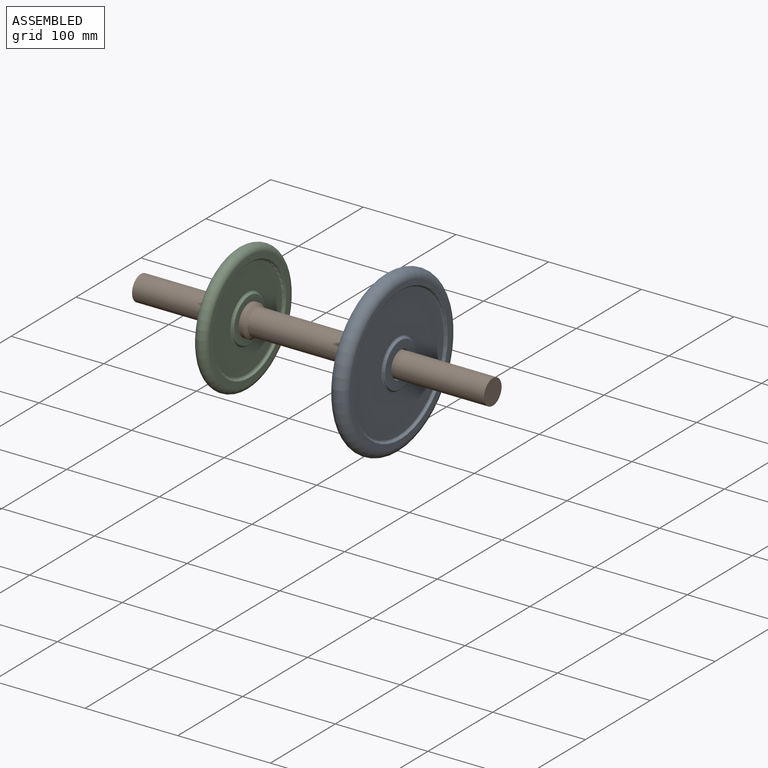
[diagram: assembled view]
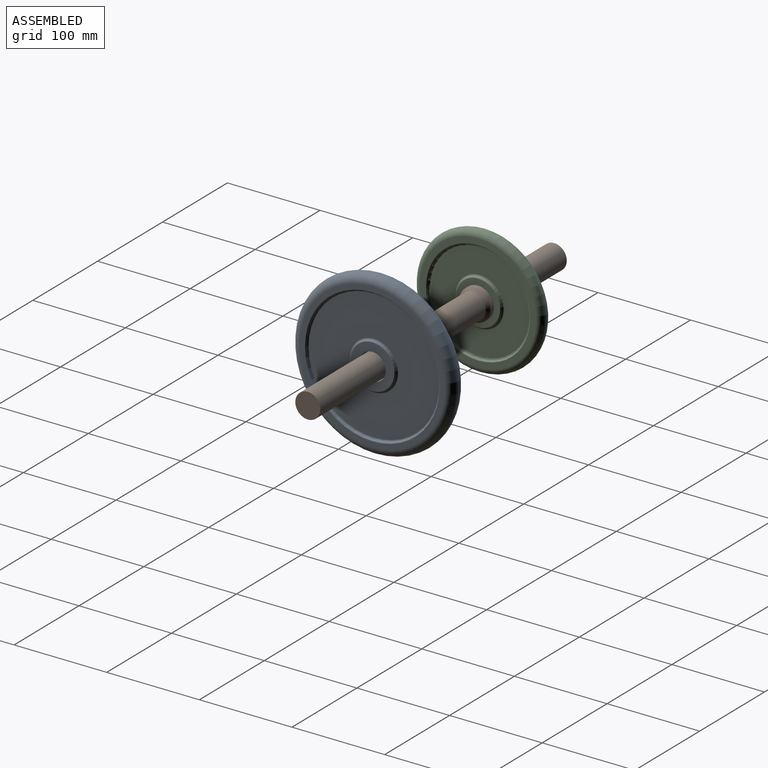
[diagram: assembled view, second angle]
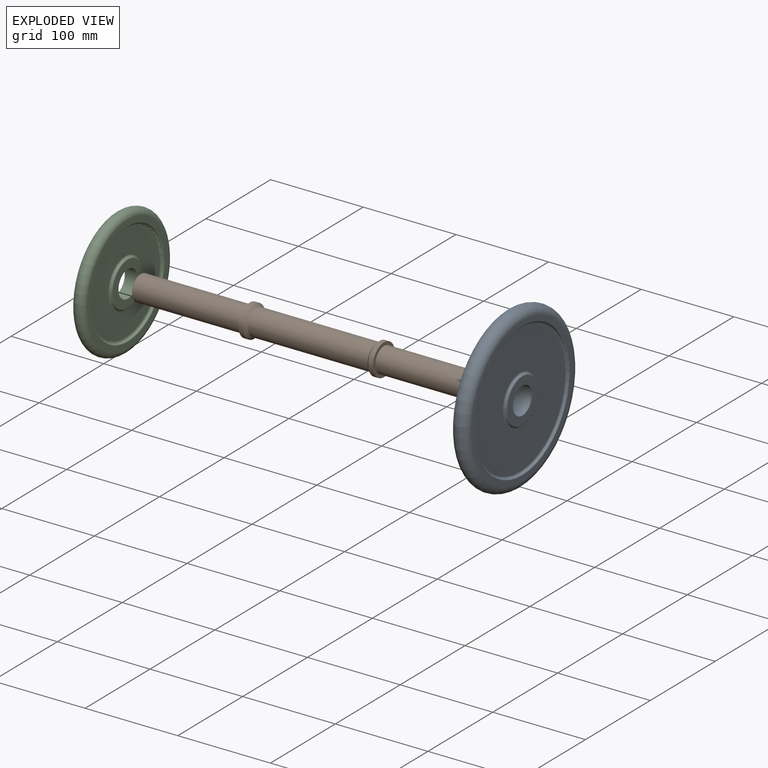
[diagram: exploded view]
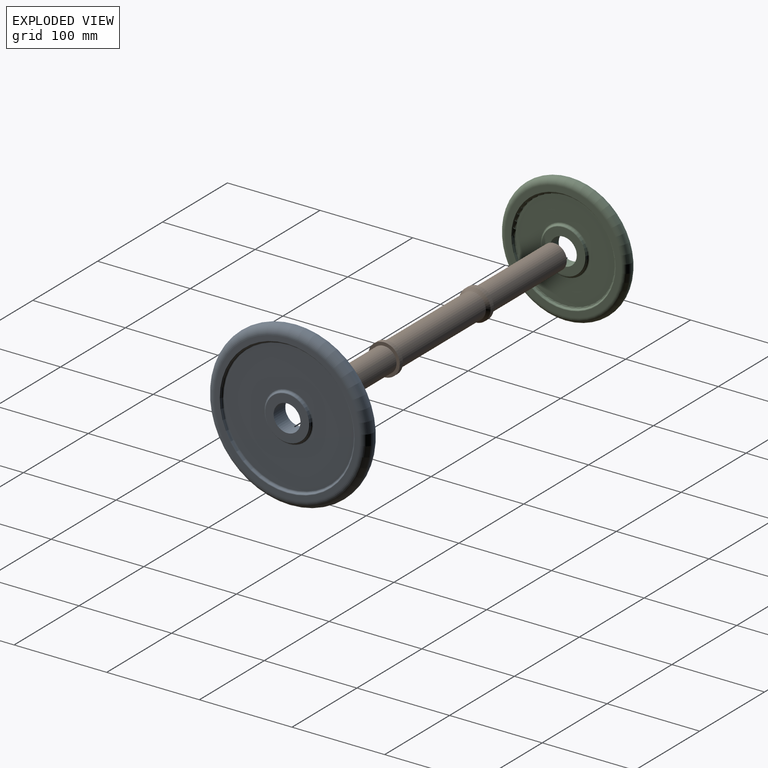
[diagram: exploded view, second angle]
ASSEMBLY  parts=3 mates=2
PART A: 140 faces, bbox 189.4x18x189.4 mm
  f0: plane 15.03x1.61mm, normal (0,-1,0), area 24.2mm2, adj f100,f101,f102,f103
  f1: plane 47.01x47.01mm, normal (0,1,0), area 1075.4mm2, adj f3,f15
  f2: plane 47.01x47.01mm, normal (0,-1,0), area 1075.4mm2, adj f3,f12
  f3: cylinder r=14.5mm len=29mm, axis (0,1,0), area 1639.9mm2, adj f1,f2
  f4: plane 157x157mm, normal (0,-1,0), area 2620.8mm2, adj f8,f10
  f5: plane 157x157mm, normal (0,1,0), area 2620.8mm2, adj f8,f16
  f6: plane 140x140mm, normal (0,-1,0), area 12787.2mm2, adj f9,f11,f17,f18,f19,f20,f21,f22
  f7: plane 140x140mm, normal (0,1,0), area 13187.6mm2, adj f13,f14
  f8: torus R=78.5mm, axis (0,-1,0), area 14963.6mm2, adj f4,f5
  f9: torus R=70mm, axis (0,-1,0), area 1346.5mm2, adj f6,f10
  f10: torus R=72.99mm, axis (0,-1,0), area 684mm2, adj f4,f9
  f11: torus R=26.5mm, axis (0,-1,0), area 477.4mm2, adj f6,f12
  f12: torus R=23.51mm, axis (0,1,0), area 228mm2, adj f2,f11
  f13: torus R=26.5mm, axis (0,1,0), area 477.4mm2, adj f7,f15
  f14: torus R=70mm, axis (0,1,0), area 1346.5mm2, adj f7,f16
  f15: torus R=23.51mm, axis (0,1,0), area 228mm2, adj f1,f13
  f16: torus R=72.99mm, axis (0,-1,0), area 684mm2, adj f5,f14
  f17: plane 3.03x1mm, normal (1,0,0), area 3mm2, adj f6,f18,f40,f138
  f18: plane 7.42x1mm, normal (0,0,1), area 7.4mm2, adj f6,f17,f19,f139
  f19: plane 1x0.16mm, normal (1,0,0), area 0.2mm2, adj f6,f18,f20,f137
  f20: plane 2.19x2.06mm, normal (0.69,0,-0.73), area 3mm2, adj f6,f19,f21,f135
  f21: extruded ~3.09x3.06mm, area 4.3mm2, adj f6,f20,f22,f133
  f22: extruded ~2.11x1.28mm, area 2.5mm2, adj f6,f21,f23,f131
  f23: extruded ~2.21x1mm, area 2.3mm2, adj f6,f22,f24,f129
  f24: extruded ~2.4x1mm, area 2.5mm2, adj f6,f23,f25,f127
  f25: extruded ~1.9x1.63mm, area 2.5mm2, adj f6,f24,f26,f125
  f26: extruded ~2.82x1mm, area 2.9mm2, adj f6,f25,f27,f123
  f27: extruded ~2.19x1mm, area 2.2mm2, adj f6,f26,f28,f121
  f28: extruded ~1.81x1mm, area 1.9mm2, adj f6,f27,f29,f119
  f29: extruded ~2.08x1.52mm, area 2.6mm2, adj f6,f28,f30,f117
  f30: plane 2.32x1.96mm, normal (-0.76,0,-0.65), area 3mm2, adj f6,f29,f31,f116
  f31: extruded ~1.95x1.29mm, area 2.3mm2, adj f6,f30,f32,f118
  f32: extruded ~1.92x1mm, area 2mm2, adj f6,f31,f33,f120
  f33: extruded ~1.51x1mm, area 1.6mm2, adj f6,f32,f34,f122
  f34: extruded ~1.53x1mm, area 1.7mm2, adj f6,f33,f35,f124
  f35: extruded ~1.33x1mm, area 1.4mm2, adj f6,f34,f36,f126
  f36: extruded ~1.39x1mm, area 1.6mm2, adj f6,f35,f37,f128
  f37: extruded ~2.7x2.48mm, area 3.7mm2, adj f6,f36,f38,f130
  f38: plane 4.32x4.27mm, normal (-0.71,0,0.7), area 6.1mm2, adj f6,f37,f39,f132
  f39: plane 2.5x1mm, normal (-1,0,0), area 2.5mm2, adj f6,f38,f40,f134
  f40: plane 11.9x1mm, normal (0,0,-1), area 11.9mm2, adj f6,f17,f39,f136
  f41: plane 15.27x9.9mm, normal (0,-1,0), area 36.8mm2, adj f116,f117,f118,f119,f120,f121,f122,f123
  f42: plane 6.25x1mm, normal (0,0,-1), area 6.3mm2, adj f6,f43,f45,f112
  f43: plane 2.91x1mm, normal (1,0,0), area 2.9mm2, adj f6,f42,f44,f114
  f44: plane 6.25x1mm, normal (0,0,1), area 6.3mm2, adj f6,f43,f45,f115
  f45: plane 2.91x1mm, normal (-1,0,0), area 2.9mm2, adj f6,f42,f44,f113
  f46: plane 4.25x0.91mm, normal (0,-1,0), area 3.9mm2, adj f112,f113,f114,f115
  f47: plane 9.49x5.99mm, normal (0.85,0,0.53), area 11.2mm2, adj f6,f48,f59,f110
  f48: plane 7.54x5.94mm, normal (0.79,0,-0.62), area 9.6mm2, adj f6,f47,f49,f111
  f49: plane 4.01x1mm, normal (0,0,1), area 4mm2, adj f6,f48,f50,f109
  f50: plane 5.79x4.61mm, normal (-0.78,0,0.62), area 7.4mm2, adj f6,f49,f51,f107
  f51: plane 2.01x1.42mm, normal (-0.82,0,0.58), area 2.5mm2, adj f6,f50,f52,f105
  f52: plane 7.79x1mm, normal (1,0,0), area 7.8mm2, adj f6,f51,f53,f102
  f53: plane 3.61x1mm, normal (0,0,1), area 3.6mm2, adj f6,f52,f54,f103
  f54: plane 17.03x1mm, normal (-1,0,0), area 17mm2, adj f6,f53,f55,f100
  f55: plane 3.61x1mm, normal (0,0,-1), area 3.6mm2, adj f6,f54,f56,f101
  f56: plane 6.08x1mm, normal (1,0,0), area 6.1mm2, adj f6,f55,f57,f102
  f57: plane 1.52x1.1mm, normal (0.58,0,-0.81), area 1.9mm2, adj f6,f56,f58,f104
  f58: plane 7.17x4.46mm, normal (-0.85,0,-0.53), area 8.4mm2, adj f6,f57,f59,f106
  f59: plane 4.1x1mm, normal (0,0,-1), area 4.1mm2, adj f6,f47,f58,f108
  f60: plane 15.03x8.55mm, normal (0,-1,0), area 25.2mm2, adj f104,f105,f106,f107,f108,f109,f110,f111
  f61: plane 3.01x1mm, normal (-1,0,0), area 3mm2, adj f6,f62,f79,f98
  f62: plane 3.23x1mm, normal (0,0,-1), area 3.2mm2, adj f6,f61,f63,f99
  f63: plane 3.55x1mm, normal (-1,0,0), area 3.6mm2, adj f6,f62,f64,f97
  f64: extruded ~2.3x1mm, area 2.3mm2, adj f6,f63,f65,f95
  f65: extruded ~3.3x1.46mm, area 3.7mm2, adj f6,f64,f66,f93
  f66: extruded ~4.23x1.13mm, area 4.5mm2, adj f6,f65,f67,f91
  f67: extruded ~4.23x1.41mm, area 4.6mm2, adj f6,f66,f68,f89
  f68: extruded ~3.75x1.57mm, area 4.2mm2, adj f6,f67,f69,f87
  f69: extruded ~3.88x1mm, area 4mm2, adj f6,f68,f70,f85
  f70: plane 2.89x1.2mm, normal (0.92,0,-0.38), area 3.1mm2, adj f6,f69,f71,f83
  f71: extruded ~5.06x1.05mm, area 5.2mm2, adj f6,f70,f72,f81
  f72: extruded ~6.54x2.31mm, area 7.1mm2, adj f6,f71,f73,f82
  f73: extruded ~6.43x2.36mm, area 7mm2, adj f6,f72,f74,f84
  f74: extruded ~6.51x2.03mm, area 7mm2, adj f6,f73,f75,f86
  f75: extruded ~5.89x2.27mm, area 6.5mm2, adj f6,f74,f76,f88
  f76: extruded ~2.96x1mm, area 3mm2, adj f6,f75,f77,f90
  f77: extruded ~3.09x1mm, area 3.2mm2, adj f6,f76,f78,f92
  f78: plane 8.83x1mm, normal (1,0,0), area 8.8mm2, adj f6,f77,f79,f94
  f79: plane 6.76x1mm, normal (0,0,1), area 6.8mm2, adj f6,f61,f78,f96
  f80: plane 15.5x11.98mm, normal (0,-1,0), area 54.4mm2, adj f81,f82,f83,f84,f85,f86,f87,f88
  f81: bspline ~5.62x2.1mm, area 7.1mm2, adj f71,f80,f82,f83
  f82: bspline ~10x3.91mm, area 10.7mm2, adj f72,f80,f81,f84
  f83: cylinder r=1mm len=3.27mm, axis (-0.38,0,-0.92), area 3.3mm2, adj f70,f80,f81,f85
  f84: bspline ~7.9x3.92mm, area 10.6mm2, adj f73,f80,f82,f86
  f85: bspline ~5.96x2.36mm, area 5.8mm2, adj f69,f80,f83,f87
  f86: bspline ~10.25x3.69mm, area 10.5mm2, adj f74,f80,f84,f88
  f87: bspline ~6.47x3.46mm, area 7.1mm2, adj f68,f80,f85,f89
  f88: bspline ~7.11x3.7mm, area 9.7mm2, adj f75,f80,f86,f90
  f89: bspline ~7.14x2.96mm, area 7.6mm2, adj f67,f80,f87,f91
  f90: bspline ~4.02x1.28mm, area 4.6mm2, adj f76,f80,f88,f92
  f91: bspline ~6.54x2.72mm, area 7.4mm2, adj f66,f80,f89,f93
  f92: bspline ~4.14x1.89mm, area 4.3mm2, adj f77,f80,f90,f94
  f93: bspline ~5.55x3.18mm, area 6.4mm2, adj f65,f80,f91,f95
  f94: cylinder r=1mm len=8.83mm, axis (0,0,-1), area 12.5mm2, adj f78,f80,f92,f96
  f95: bspline ~4.77x1.58mm, area 4.4mm2, adj f64,f80,f93,f97
  f96: cylinder r=1mm len=6.76mm, axis (1,0,0), area 9mm2, adj f79,f80,f94,f98
  f97: cylinder r=1mm len=5.37mm, axis (0,0,1), area 7mm2, adj f63,f80,f95,f99
  f98: cylinder r=1mm len=3.01mm, axis (0,0,1), area 3.2mm2, adj f61,f80,f96,f99
  f99: cylinder r=1mm len=4.23mm, axis (-1,0,0), area 5.1mm2, adj f62,f80,f97,f98
  f100: cylinder r=1mm len=17.03mm, axis (0,0,1), area 25.2mm2, adj f0,f54,f101,f103
  f101: cylinder r=1mm len=3.61mm, axis (-1,0,0), area 4.1mm2, adj f0,f55,f100,f102
  f102: cylinder r=1mm len=17.03mm, axis (0,0,-1), area 22.9mm2, adj f0,f52,f56,f101,f103,f104,f105
  f103: cylinder r=1mm len=3.61mm, axis (1,0,0), area 4.1mm2, adj f0,f53,f100,f102
  f104: cylinder r=1mm len=3.34mm, axis (-0.81,0,-0.58), area 4.1mm2, adj f57,f60,f102,f105,f106
  f105: cylinder r=1mm len=4.8mm, axis (0.58,0,0.82), area 5.5mm2, adj f51,f60,f102,f104,f107
  f106: cylinder r=1mm len=8.61mm, axis (-0.53,0,0.85), area 13.7mm2, adj f58,f60,f104,f108
  f107: cylinder r=1mm len=6.41mm, axis (0.62,0,0.78), area 11.2mm2, adj f50,f60,f105,f109
  f108: cylinder r=1mm len=4.1mm, axis (-1,0,0), area 4.6mm2, adj f59,f60,f106,f110
  f109: cylinder r=1mm len=4.01mm, axis (1,0,0), area 4.3mm2, adj f49,f60,f107,f111
  f110: cylinder r=1mm len=10.62mm, axis (0.53,0,-0.85), area 16.8mm2, adj f47,f60,f108,f111
  f111: cylinder r=1mm len=8.71mm, axis (-0.62,0,-0.79), area 14mm2, adj f48,f60,f109,f110
  f112: cylinder r=1mm len=6.25mm, axis (-1,0,0), area 8.3mm2, adj f42,f46,f113,f114
  f113: cylinder r=1mm len=2.91mm, axis (0,0,1), area 3mm2, adj f45,f46,f112,f115
  f114: cylinder r=1mm len=2.91mm, axis (0,0,-1), area 3mm2, adj f43,f46,f112,f115
  f115: cylinder r=1mm len=6.25mm, axis (1,0,0), area 8.3mm2, adj f44,f46,f113,f114
  f116: cylinder r=1mm len=2.96mm, axis (-0.65,0,0.76), area 3.2mm2, adj f30,f41,f117,f118
  f117: bspline ~3.32x2.76mm, area 3.1mm2, adj f29,f41,f116,f119
  f118: bspline ~3.37x2.66mm, area 3.1mm2, adj f31,f41,f116,f120
  f119: bspline ~2.75x1.83mm, area 2.9mm2, adj f28,f41,f117,f121
  f120: bspline ~2.88x1.5mm, area 3.4mm2, adj f32,f41,f118,f122
  f121: bspline ~3.07x1.32mm, area 3.3mm2, adj f27,f41,f119,f123
  f122: bspline ~2.98x1.81mm, area 3mm2, adj f33,f41,f120,f124
  f123: bspline ~3.99x1.75mm, area 4.3mm2, adj f26,f41,f121,f125
  f124: bspline ~2.97x1.88mm, area 3.1mm2, adj f34,f41,f122,f126
  f125: bspline ~3.13x2.88mm, area 3.7mm2, adj f25,f41,f123,f127
  f126: bspline ~2.27x1.37mm, area 2.4mm2, adj f35,f41,f124,f128
  f127: bspline ~3.39x1.81mm, area 3.6mm2, adj f24,f41,f125,f129
  f128: bspline ~2.42x1.96mm, area 2.7mm2, adj f36,f41,f126,f130
  f129: bspline ~3.1x1.51mm, area 3.3mm2, adj f23,f41,f127,f131
  f130: bspline ~4.8x4.56mm, area 5.8mm2, adj f37,f41,f128,f132
  f131: bspline ~3.37x2.58mm, area 3.7mm2, adj f22,f41,f129,f133
  f132: cylinder r=1mm len=5.03mm, axis (0.7,0,0.71), area 9.2mm2, adj f38,f41,f130,f134
  f133: bspline ~5.17x5.17mm, area 6.7mm2, adj f21,f41,f131,f135
  f134: cylinder r=1mm len=2.5mm, axis (0,0,1), area 2.8mm2, adj f39,f41,f132,f136
  f135: cylinder r=1mm len=3.2mm, axis (-0.73,0,-0.69), area 5.1mm2, adj f20,f41,f133,f137
  f136: cylinder r=1mm len=11.9mm, axis (-1,0,0), area 17.1mm2, adj f40,f41,f134,f138
  f137: cylinder r=1mm len=1.59mm, axis (0,0,-1), area 1.1mm2, adj f19,f41,f135,f139
  f138: cylinder r=1mm len=3.03mm, axis (0,0,-1), area 3.2mm2, adj f17,f41,f136,f139
  f139: cylinder r=1mm len=8.42mm, axis (1,0,0), area 11.7mm2, adj f18,f41,f137,f138
PART B: 11 faces, bbox 380x34x34 mm
  f0: cylinder r=13.5mm len=117.5mm, axis (-1,0,0), area 9966.7mm2, adj f1,f3
  f1: plane 27x27mm, normal (1,0,0), area 572.6mm2, adj f0
  f2: cylinder r=17mm len=34mm, axis (-1,0,0), area 534.1mm2, adj f3,f9
  f3: plane 34x34mm, normal (1,0,0), area 335.4mm2, adj f0,f2
  f4: cylinder r=14mm len=129mm, axis (-1,0,0), area 11347.4mm2, adj f9,f10
  f5: plane 27x27mm, normal (-1,0,0), area 572.6mm2, adj f6
  f6: cylinder r=13.5mm len=117.5mm, axis (-1,0,0), area 9966.7mm2, adj f5,f7
  f7: plane 34x34mm, normal (-1,0,0), area 335.4mm2, adj f6,f8
  f8: cylinder r=17mm len=34mm, axis (-1,0,0), area 534.1mm2, adj f7,f10
  f9: cone r=17mm half-angle=45deg, axis (1,0,0), area 413.2mm2, adj f2,f4
  f10: cone r=14mm half-angle=45deg, axis (-1,0,0), area 413.2mm2, adj f4,f8
PART C: 112 faces, bbox 150.5x13.5x150.5 mm
  f0: plane 47.01x47.01mm, normal (0,1,0), area 1075.4mm2, adj f2,f14
  f1: plane 47.01x47.01mm, normal (0,-1,0), area 1075.4mm2, adj f2,f11
  f2: cylinder r=14.5mm len=29mm, axis (0,1,0), area 1229.9mm2, adj f0,f1
  f3: plane 125.5x125.5mm, normal (0,-1,0), area 2343.8mm2, adj f7,f9
  f4: plane 125.5x125.5mm, normal (0,1,0), area 2343.8mm2, adj f7,f15
  f5: plane 107x107mm, normal (0,-1,0), area 6453.6mm2, adj f8,f10,f16,f17,f18,f19,f20,f21
  f6: plane 107x107mm, normal (0,1,0), area 6785.8mm2, adj f12,f13
  f7: torus R=62.75mm, axis (0,-1,0), area 8933.3mm2, adj f3,f4
  f8: torus R=53.5mm, axis (0,-1,0), area 1034.7mm2, adj f5,f9
  f9: torus R=56.49mm, axis (0,-1,0), area 528mm2, adj f3,f8
  f10: torus R=26.5mm, axis (0,-1,0), area 477.4mm2, adj f5,f11
  f11: torus R=23.51mm, axis (0,1,0), area 228mm2, adj f1,f10
  f12: torus R=26.5mm, axis (0,1,0), area 477.4mm2, adj f6,f14
  f13: torus R=53.5mm, axis (0,1,0), area 1034.7mm2, adj f6,f15
  f14: torus R=23.51mm, axis (0,1,0), area 228mm2, adj f0,f12
  f15: torus R=56.49mm, axis (0,-1,0), area 528mm2, adj f4,f13
  f16: plane 16.19x1.2mm, normal (1,0,0), area 19.4mm2, adj f5,f17,f25,f110
  f17: plane 2.81x1.2mm, normal (0,0,1), area 3.4mm2, adj f5,f16,f18,f111
  f18: plane 5.22x4.15mm, normal (-0.62,0,0.78), area 8mm2, adj f5,f17,f19,f109
  f19: plane 2.06x1.65mm, normal (-0.78,0,-0.63), area 3.2mm2, adj f5,f18,f20,f107
  f20: plane 1.86x1.5mm, normal (0.63,0,-0.78), area 2.9mm2, adj f5,f19,f21,f105
  f21: extruded ~1.2x1.18mm, area 2mm2, adj f5,f20,f22,f103
  f22: plane 1.68x1.2mm, normal (-1,0,0.03), area 2mm2, adj f5,f21,f23,f102
  f23: plane 1.54x1.2mm, normal (-1,0,0.02), area 1.8mm2, adj f5,f22,f24,f104
  f24: plane 9.37x1.2mm, normal (-1,0,0), area 11.2mm2, adj f5,f23,f25,f106
  f25: plane 3.42x1.2mm, normal (0,0,-1), area 4.1mm2, adj f5,f16,f24,f108
  f26: plane 14.59x6.1mm, normal (0,-1,0), area 31mm2, adj f102,f103,f104,f105,f106,f107,f108,f109
  f27: plane 5.95x1.2mm, normal (0,0,-1), area 7.1mm2, adj f5,f28,f30,f98
  f28: plane 2.77x1.2mm, normal (1,0,0), area 3.3mm2, adj f5,f27,f29,f100
  f29: plane 5.95x1.2mm, normal (0,0,1), area 7.1mm2, adj f5,f28,f30,f101
  f30: plane 2.77x1.2mm, normal (-1,0,0), area 3.3mm2, adj f5,f27,f29,f99
  f31: plane 4.35x1.17mm, normal (0,-1,0), area 5.1mm2, adj f98,f99,f100,f101
  f32: plane 9.03x5.69mm, normal (0.85,0,0.53), area 12.8mm2, adj f5,f33,f44,f96
  f33: plane 7.17x5.65mm, normal (0.79,0,-0.62), area 10.9mm2, adj f5,f32,f34,f97
  f34: plane 3.81x1.2mm, normal (0,0,1), area 4.6mm2, adj f5,f33,f35,f95
  f35: plane 5.5x4.39mm, normal (-0.78,0,0.62), area 8.4mm2, adj f5,f34,f36,f93
  f36: plane 1.91x1.35mm, normal (-0.82,0,0.58), area 2.8mm2, adj f5,f35,f37,f91
  f37: plane 7.41x1.2mm, normal (1,0,0), area 8.9mm2, adj f5,f36,f38,f89
  f38: plane 3.43x1.2mm, normal (0,0,1), area 4.1mm2, adj f5,f37,f39,f87
  f39: plane 16.19x1.2mm, normal (-1,0,0), area 19.4mm2, adj f5,f38,f40,f85
  f40: plane 3.43x1.2mm, normal (0,0,-1), area 4.1mm2, adj f5,f39,f41,f86
  f41: plane 5.78x1.2mm, normal (1,0,0), area 6.9mm2, adj f5,f40,f42,f88
  f42: plane 1.45x1.2mm, normal (0.58,0,-0.81), area 2.1mm2, adj f5,f41,f43,f90
  f43: plane 6.82x4.24mm, normal (-0.85,0,-0.53), area 9.6mm2, adj f5,f42,f44,f92
  f44: plane 3.9x1.2mm, normal (0,0,-1), area 4.7mm2, adj f5,f32,f43,f94
  f45: plane 14.59x10.77mm, normal (0,-1,0), area 56.1mm2, adj f85,f86,f87,f88,f89,f90,f91,f92
  f46: plane 2.86x1.2mm, normal (-1,0,0), area 3.4mm2, adj f5,f47,f64,f83
  f47: plane 3.07x1.2mm, normal (0,0,-1), area 3.7mm2, adj f5,f46,f48,f84
  f48: plane 3.38x1.2mm, normal (-1,0,0), area 4.1mm2, adj f5,f47,f49,f82
  f49: extruded ~2.18x1.2mm, area 2.6mm2, adj f5,f48,f50,f80
  f50: extruded ~3.14x1.39mm, area 4.3mm2, adj f5,f49,f51,f78
  f51: extruded ~4.03x1.2mm, area 5.1mm2, adj f5,f50,f52,f76
  f52: extruded ~4.02x1.34mm, area 5.2mm2, adj f5,f51,f53,f74
  f53: extruded ~3.57x1.5mm, area 4.8mm2, adj f5,f52,f54,f72
  f54: extruded ~3.69x1.2mm, area 4.6mm2, adj f5,f53,f55,f70
  f55: plane 2.75x1.2mm, normal (0.92,0,-0.38), area 3.6mm2, adj f5,f54,f56,f68
  f56: extruded ~4.81x1.2mm, area 5.9mm2, adj f5,f55,f57,f66
  f57: extruded ~6.22x2.19mm, area 8.1mm2, adj f5,f56,f58,f67
  f58: extruded ~6.11x2.24mm, area 8mm2, adj f5,f57,f59,f69
  f59: extruded ~6.19x1.93mm, area 8mm2, adj f5,f58,f60,f71
  f60: extruded ~5.6x2.15mm, area 7.4mm2, adj f5,f59,f61,f73
  f61: extruded ~2.82x1.2mm, area 3.4mm2, adj f5,f60,f62,f75
  f62: extruded ~2.94x1.2mm, area 3.6mm2, adj f5,f61,f63,f77
  f63: plane 8.4x1.2mm, normal (1,0,0), area 10.1mm2, adj f5,f62,f64,f79
  f64: plane 6.43x1.2mm, normal (0,0,1), area 7.7mm2, adj f5,f46,f63,f81
  f65: plane 15.05x11.69mm, normal (0,-1,0), area 61.2mm2, adj f66,f67,f68,f69,f70,f71,f72,f73
  f66: bspline ~5.23x1.81mm, area 5.6mm2, adj f56,f65,f67,f68
  f67: bspline ~9.57x3.63mm, area 8.2mm2, adj f57,f65,f66,f69
  f68: cylinder r=0.8mm len=3.05mm, axis (-0.38,0,-0.92), area 2.7mm2, adj f55,f65,f66,f70
  f69: bspline ~9.28x3.64mm, area 8.1mm2, adj f58,f65,f67,f71
  f70: bspline ~5.57x2.09mm, area 4.5mm2, adj f54,f65,f68,f72
  f71: bspline ~9.82x3.41mm, area 8.1mm2, adj f59,f65,f69,f73
  f72: bspline ~5.24x3.17mm, area 5.3mm2, adj f53,f65,f70,f74
  f73: bspline ~8.28x3.44mm, area 7.5mm2, adj f60,f65,f71,f75
  f74: bspline ~5.55x2.68mm, area 5.7mm2, adj f52,f65,f72,f76
  f75: bspline ~3.81x1.07mm, area 3.5mm2, adj f61,f65,f73,f77
  f76: bspline ~5.63x2.01mm, area 5.6mm2, adj f51,f65,f74,f78
  f77: bspline ~3.86x1.64mm, area 3.4mm2, adj f62,f65,f75,f79
  f78: bspline ~5.24x2.91mm, area 4.8mm2, adj f50,f65,f76,f80
  f79: cylinder r=0.8mm len=8.4mm, axis (0,0,-1), area 9.7mm2, adj f63,f65,f77,f81
  f80: bspline ~4.48x1.35mm, area 3.2mm2, adj f49,f65,f78,f82
  f81: cylinder r=0.8mm len=6.43mm, axis (1,0,0), area 7.1mm2, adj f64,f65,f79,f83
  f82: cylinder r=0.8mm len=4.83mm, axis (0,0,1), area 5.2mm2, adj f48,f65,f80,f84
  f83: cylinder r=0.8mm len=2.86mm, axis (0,0,1), area 2.6mm2, adj f46,f65,f81,f84
  f84: cylinder r=0.8mm len=3.87mm, axis (-1,0,0), area 3.9mm2, adj f47,f65,f82,f83
  f85: cylinder r=0.8mm len=16.19mm, axis (0,0,1), area 19.3mm2, adj f39,f45,f86,f87
  f86: cylinder r=0.8mm len=3.43mm, axis (-1,0,0), area 3.3mm2, adj f40,f45,f85,f88
  f87: cylinder r=0.8mm len=3.43mm, axis (1,0,0), area 3.3mm2, adj f38,f45,f85,f89
  f88: cylinder r=0.8mm len=6.19mm, axis (0,0,-1), area 7mm2, adj f41,f45,f86,f90
  f89: cylinder r=0.8mm len=9.92mm, axis (0,0,-1), area 10.4mm2, adj f37,f45,f87,f91
  f90: cylinder r=0.8mm len=2.94mm, axis (-0.81,0,-0.58), area 3mm2, adj f42,f45,f88,f92
  f91: cylinder r=0.8mm len=4.42mm, axis (0.58,0,0.82), area 4.5mm2, adj f36,f45,f89,f93
  f92: cylinder r=0.8mm len=7.97mm, axis (-0.53,0,0.85), area 10.4mm2, adj f43,f45,f90,f94
  f93: cylinder r=0.8mm len=6mm, axis (0.62,0,0.78), area 8.6mm2, adj f35,f45,f91,f95
  f94: cylinder r=0.8mm len=3.9mm, axis (-1,0,0), area 3.7mm2, adj f44,f45,f92,f96
  f95: cylinder r=0.8mm len=3.81mm, axis (1,0,0), area 3.5mm2, adj f34,f45,f93,f97
  f96: cylinder r=0.8mm len=9.93mm, axis (0.53,0,-0.85), area 12.9mm2, adj f32,f45,f94,f97
  f97: cylinder r=0.8mm len=8.1mm, axis (-0.62,0,-0.79), area 10.8mm2, adj f33,f45,f95,f96
  f98: cylinder r=0.8mm len=5.95mm, axis (-1,0,0), area 6.5mm2, adj f27,f31,f99,f100
  f99: cylinder r=0.8mm len=2.77mm, axis (0,0,1), area 2.5mm2, adj f30,f31,f98,f101
  f100: cylinder r=0.8mm len=2.77mm, axis (0,0,-1), area 2.5mm2, adj f28,f31,f98,f101
  f101: cylinder r=0.8mm len=5.95mm, axis (1,0,0), area 6.5mm2, adj f29,f31,f99,f100
  f102: cylinder r=0.8mm len=3.73mm, axis (0.03,0,1), area 3.4mm2, adj f22,f26,f103,f104
  f103: bspline ~3.68x3.64mm, area 3.3mm2, adj f21,f26,f102,f105
  f104: cylinder r=0.8mm len=1.56mm, axis (0.02,0,1), area 1.9mm2, adj f23,f26,f102,f106
  f105: cylinder r=0.8mm len=2.36mm, axis (-0.78,0,-0.63), area 2.5mm2, adj f20,f26,f103,f107
  f106: cylinder r=0.8mm len=9.37mm, axis (0,0,1), area 11.3mm2, adj f24,f26,f104,f108
  f107: cylinder r=0.8mm len=2.56mm, axis (-0.63,0,0.78), area 2.3mm2, adj f19,f26,f105,f109
  f108: cylinder r=0.8mm len=3.42mm, axis (-1,0,0), area 3.3mm2, adj f25,f26,f106,f110
  f109: cylinder r=0.8mm len=5.71mm, axis (0.78,0,0.62), area 7.7mm2, adj f18,f26,f107,f111
  f110: cylinder r=0.8mm len=16.19mm, axis (0,0,-1), area 19.3mm2, adj f16,f26,f108,f111
  f111: cylinder r=0.8mm len=2.81mm, axis (1,0,0), area 2.9mm2, adj f17,f26,f109,f110
PLACE A rot(axis=(0,0,-1),90deg) t=(81.5,0,0)mm
PLACE B at identity
PLACE C rot(axis=(0,0,-1),90deg) t=(-79.25,0,0)mm
MATE fastened A.f3 <-> B.f0  axis (-1,0,0) through (72.5,0,0)mm
MATE fastened C.f2 <-> B.f0  axis (1,0,0) through (-72.5,0,0)mm
